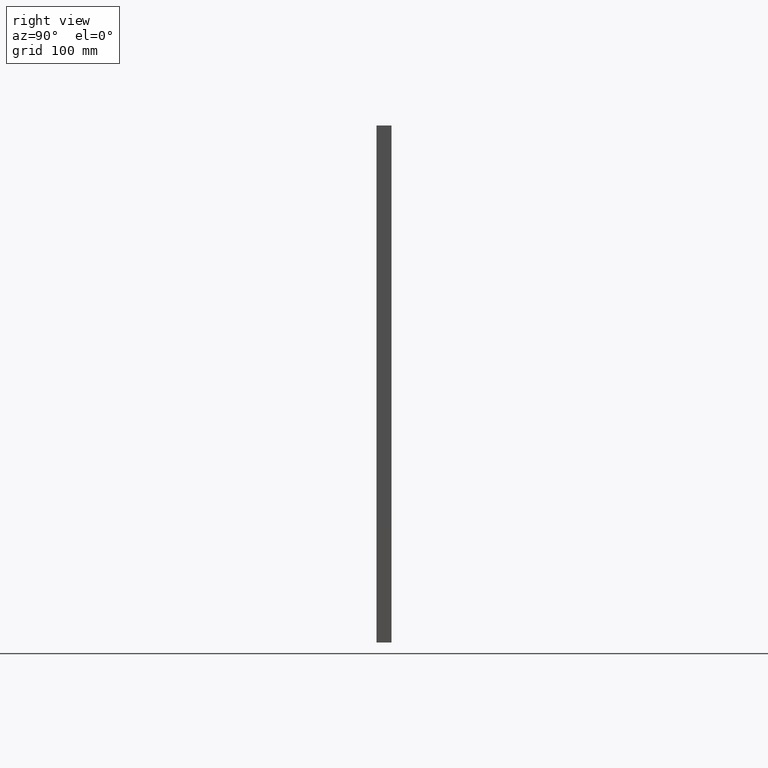
[diagram: clean part render]
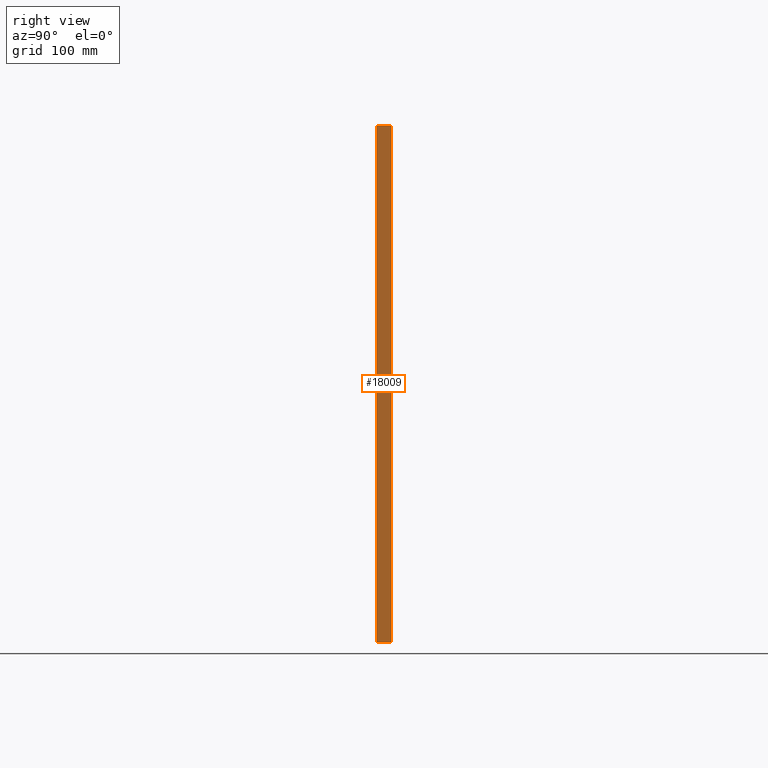
[diagram: same view with one face highlighted and labeled with its STEP entity id]
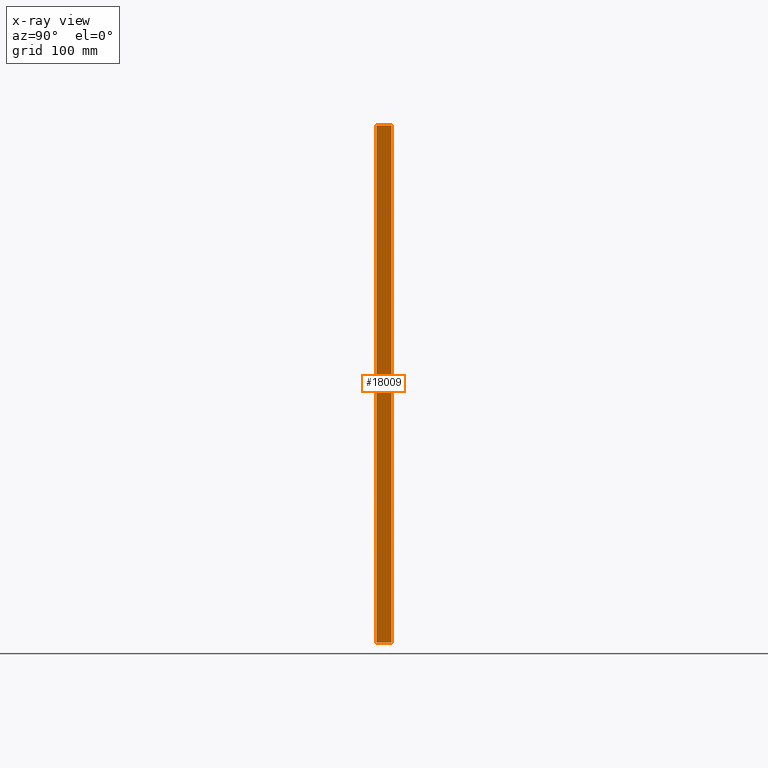
[diagram: x-ray of the same camera — body ghosted, the highlighted face saturated]
A machine part, right view. The second image highlights one B-rep face of the part: STEP entity #18009.
The next image is the same camera in x-ray: the body ghosted, the highlighted face saturated — about 0% of this face is hidden behind the body in this view.
In plain terms, the highlighted planar face has unit normal (-1, 0, 0).
Its self-contained STEP definition (entity closure, byte-faithful):
#201 = VECTOR ( 'NONE', #12302, 1000.000000000000000 ) ;
#1218 = CARTESIAN_POINT ( 'NONE',  ( 225.0000000000000000, 13.00000000000000000, -224.9999999999999716 ) ) ;
#1658 = EDGE_CURVE ( 'NONE', #2879, #2097, #11515, .T. ) ;
#2097 = VERTEX_POINT ( 'NONE', #11592 ) ;
#2879 = VERTEX_POINT ( 'NONE', #8923 ) ;
#4279 = VECTOR ( 'NONE', #13315, 1000.000000000000000 ) ;
#6595 = CARTESIAN_POINT ( 'NONE',  ( 225.0000000000000568, 13.00000000000000000, 225.0000000000000284 ) ) ;
#6997 = CARTESIAN_POINT ( 'NONE',  ( 225.0000000000000000, 13.00000000000000000, -224.9999999999999716 ) ) ;
#8025 = EDGE_CURVE ( 'NONE', #2097, #12182, #13439, .T. ) ;
#8694 = CARTESIAN_POINT ( 'NONE',  ( 225.0000000000000000, 0.000000000000000000, -224.9999999999999716 ) ) ;
#8923 = CARTESIAN_POINT ( 'NONE',  ( 225.0000000000000568, 13.00000000000000000, 225.0000000000000284 ) ) ;
#9908 = AXIS2_PLACEMENT_3D ( 'NONE', #6997, #12023, #12238 ) ;
#11515 = LINE ( 'NONE', #6595, #15059 ) ;
#11592 = CARTESIAN_POINT ( 'NONE',  ( 225.0000000000000568, 0.000000000000000000, 225.0000000000000284 ) ) ;
#11795 = CARTESIAN_POINT ( 'NONE',  ( 225.0000000000000000, 13.00000000000000000, -224.9999999999999716 ) ) ;
#11822 = ORIENTED_EDGE ( 'NONE', *, *, #1658, .T. ) ;
#12023 = DIRECTION ( 'NONE',  ( -1.000000000000000000, 0.000000000000000000, 1.233581138472396211E-16 ) ) ;
#12182 = VERTEX_POINT ( 'NONE', #8694 ) ;
#12238 = DIRECTION ( 'NONE',  ( 1.233581138472396211E-16, 0.000000000000000000, 1.000000000000000000 ) ) ;
#12302 = DIRECTION ( 'NONE',  ( -1.233581138472396211E-16, -0.000000000000000000, -1.000000000000000000 ) ) ;
#13064 = ORIENTED_EDGE ( 'NONE', *, *, #8025, .T. ) ;
#13315 = DIRECTION ( 'NONE',  ( -0.000000000000000000, -1.000000000000000000, -0.000000000000000000 ) ) ;
#13439 = LINE ( 'NONE', #20098, #21231 ) ;
#13653 = PLANE ( 'NONE',  #9908 ) ;
#13937 = CARTESIAN_POINT ( 'NONE',  ( 225.0000000000000000, 13.00000000000000000, -224.9999999999999716 ) ) ;
#14335 = LINE ( 'NONE', #13937, #201 ) ;
#15059 = VECTOR ( 'NONE', #19899, 1000.000000000000000 ) ;
#15184 = DIRECTION ( 'NONE',  ( -1.233581138472396211E-16, -0.000000000000000000, -1.000000000000000000 ) ) ;
#16449 = VERTEX_POINT ( 'NONE', #1218 ) ;
#16533 = ORIENTED_EDGE ( 'NONE', *, *, #19075, .F. ) ;
#16802 = EDGE_LOOP ( 'NONE', ( #13064, #19370, #16533, #11822 ) ) ;
#18009 = ADVANCED_FACE ( 'NONE', ( #20207 ), #13653, .F. ) ;
#18238 = LINE ( 'NONE', #11795, #4279 ) ;
#18351 = EDGE_CURVE ( 'NONE', #16449, #12182, #18238, .T. ) ;
#19075 = EDGE_CURVE ( 'NONE', #2879, #16449, #14335, .T. ) ;
#19370 = ORIENTED_EDGE ( 'NONE', *, *, #18351, .F. ) ;
#19899 = DIRECTION ( 'NONE',  ( -0.000000000000000000, -1.000000000000000000, -0.000000000000000000 ) ) ;
#20098 = CARTESIAN_POINT ( 'NONE',  ( 225.0000000000000000, 0.000000000000000000, -224.9999999999999716 ) ) ;
#20207 = FACE_OUTER_BOUND ( 'NONE', #16802, .T. ) ;
#21231 = VECTOR ( 'NONE', #15184, 1000.000000000000000 ) ;